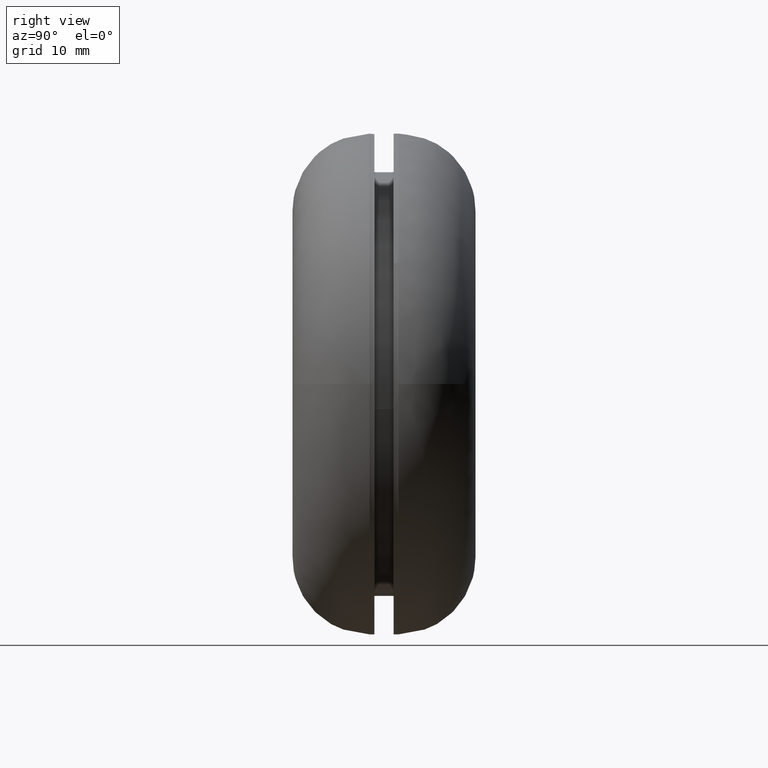
[diagram: clean part render]
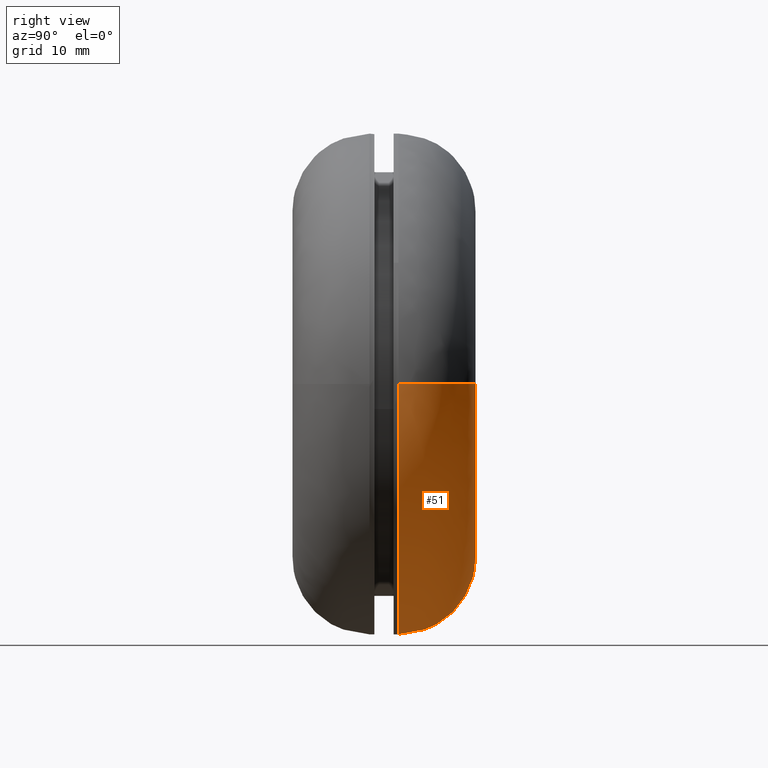
[diagram: same view with one face highlighted and labeled with its STEP entity id]
A machine part, right view. The second image highlights one B-rep face of the part: STEP entity #51.
In plain terms, the highlighted face is a freeform B-spline surface patch.
Its self-contained STEP definition (entity closure, byte-faithful):
#51=ADVANCED_FACE('',(#171),#170,.T.);
#170=( BOUNDED_SURFACE() B_SPLINE_SURFACE( 2,2,((#342,#343,#344,#345,#346),(#347,#348,#349,#350,#351),(#352,#353,#354,#355,#356),(#357,#358,#359,#360,#361),(#362,#363,#364,#365,#366)), .UNSPECIFIED.,.F.,.F.,.F.) B_SPLINE_SURFACE_WITH_KNOTS((3,2,3),(3,2,3),(-1.57079637440E+000,-1.04719723487E+000,9.48983808868E-007),(3.14159265359E+000,4.71238898038E+000,6.28318530718E+000), .UNSPECIFIED. ) GEOMETRIC_REPRESENTATION_ITEM() RATIONAL_B_SPLINE_SURFACE(((9.33012622810E-001,6.59739552522E-001,9.33012622810E-001,6.59739552522E-001,9.33012622810E-001),(9.33012616720E-001,6.59739548215E-001,9.33012616720E-001,6.59739548215E-001,9.33012616720E-001),(1.00000000000E+000,7.07106781187E-001,1.00000000000E+000,7.07106781187E-001,1.00000000000E+000),(8.66025245620E-001,6.12372323857E-001,8.66025245620E-001,6.12372323857E-001,8.66025245620E-001),(1.00000000000E+000,7.07106781187E-001,1.00000000000E+000,7.07106781187E-001,1.00000000000E+000))) REPRESENTATION_ITEM('') SURFACE() );
#171=FACE_OUTER_BOUND('',#367,.T.);
#342=CARTESIAN_POINT('',(1.79999996102E+001,1.90000000000E+001,-4.68013923126E-014));
#343=CARTESIAN_POINT('',(1.79999996102E+001,1.90000000000E+001,-1.79999996102E+001));
#344=CARTESIAN_POINT('',(-4.86520907459E-012,1.90000000000E+001,-1.79999996102E+001));
#345=CARTESIAN_POINT('',(-1.79999996102E+001,1.90000000000E+001,-1.79999996102E+001));
#346=CARTESIAN_POINT('',(-1.79999996102E+001,1.90000000000E+001,-4.23928095343E-014));
#347=CARTESIAN_POINT('',(2.01435947147E+001,1.90000001044E+001,-4.70638986500E-014));
#348=CARTESIAN_POINT('',(2.01435947147E+001,1.90000001044E+001,-2.01435947147E+001));
#349=CARTESIAN_POINT('',(-4.86547155523E-012,1.90000001044E+001,-2.01435947147E+001));
#350=CARTESIAN_POINT('',(-2.01435947147E+001,1.90000001044E+001,-2.01435947147E+001));
#351=CARTESIAN_POINT('',(-2.01435947147E+001,1.90000001044E+001,-4.21303038347E-014));
#352=CARTESIAN_POINT('',(2.20000021916E+001,1.79282019650E+001,-4.40181059154E-014));
#353=CARTESIAN_POINT('',(2.20000021916E+001,1.79282019650E+001,-2.20000021916E+001));
#354=CARTESIAN_POINT('',(-5.12615255699E-012,1.79282019650E+001,-2.20000021916E+001));
#355=CARTESIAN_POINT('',(-2.20000021916E+001,1.79282019650E+001,-2.20000021916E+001));
#356=CARTESIAN_POINT('',(-2.20000021916E+001,1.79282019650E+001,-3.86298374219E-014));
#357=CARTESIAN_POINT('',(2.60000043832E+001,1.56187979358E+001,-3.74553346676E-014));
#358=CARTESIAN_POINT('',(2.60000043832E+001,1.56187979358E+001,-2.60000043832E+001));
#359=CARTESIAN_POINT('',(-5.68784205208E-012,1.56187979358E+001,-2.60000043832E+001));
#360=CARTESIAN_POINT('',(-2.60000043832E+001,1.56187979358E+001,-2.60000043832E+001));
#361=CARTESIAN_POINT('',(-2.60000043832E+001,1.56187979358E+001,-3.10873805542E-014));
#362=CARTESIAN_POINT('',(2.60000000000E+001,1.09999924081E+001,-2.33501137436E-014));
#363=CARTESIAN_POINT('',(2.60000000000E+001,1.09999924081E+001,-2.60000000000E+001));
#364=CARTESIAN_POINT('',(-6.81024074113E-012,1.09999924081E+001,-2.60000000000E+001));
#365=CARTESIAN_POINT('',(-2.60000000000E+001,1.09999924081E+001,-2.60000000000E+001));
#366=CARTESIAN_POINT('',(-2.60000000000E+001,1.09999924081E+001,-1.69821607037E-014));
#367=EDGE_LOOP('',(#459,#460,#461,#462,#463,#464,#465,#466));
#459=ORIENTED_EDGE('',*,*,#536,.F.);
#460=ORIENTED_EDGE('',*,*,#537,.F.);
#461=ORIENTED_EDGE('',*,*,#538,.F.);
#462=ORIENTED_EDGE('',*,*,#539,.F.);
#463=ORIENTED_EDGE('',*,*,#530,.F.);
#464=ORIENTED_EDGE('',*,*,#504,.T.);
#465=ORIENTED_EDGE('',*,*,#506,.T.);
#466=ORIENTED_EDGE('',*,*,#535,.T.);
#504=EDGE_CURVE('',#628,#629,#630,.T.);
#506=EDGE_CURVE('',#629,#636,#643,.T.);
#530=EDGE_CURVE('',#628,#804,#805,.T.);
#535=EDGE_CURVE('',#636,#832,#839,.T.);
#536=EDGE_CURVE('',#845,#832,#846,.T.);
#537=EDGE_CURVE('',#852,#845,#853,.T.);
#538=EDGE_CURVE('',#859,#852,#860,.T.);
#539=EDGE_CURVE('',#804,#859,#866,.T.);
#628=VERTEX_POINT('',#956);
#629=VERTEX_POINT('',#957);
#630=CIRCLE('',#961,1.80000000003E+001);
#636=VERTEX_POINT('',#962);
#643=CIRCLE('',#970,1.80000000003E+001);
#804=VERTEX_POINT('',#1074);
#805=(BOUNDED_CURVE() B_SPLINE_CURVE(2,(#1075,#1076,#1077,#1078,#1079),.UNSPECIFIED.,.F.,.F.) B_SPLINE_CURVE_WITH_KNOTS((3,2,3),(-1.57079632679E+000,-1.04719723487E+000,9.45081691634E-007),.UNSPECIFIED.) CURVE() GEOMETRIC_REPRESENTATION_ITEM() RATIONAL_B_SPLINE_CURVE((9.33012622810E-001,9.33012622810E-001,1.00000000000E+000,8.66025245620E-001,1.00000000000E+000)) REPRESENTATION_ITEM('') );
#832=VERTEX_POINT('',#1095);
#839=(BOUNDED_CURVE() B_SPLINE_CURVE(2,(#1100,#1101,#1102,#1103,#1104),.UNSPECIFIED.,.F.,.F.) B_SPLINE_CURVE_WITH_KNOTS((3,2,3),(-1.57079637440E+000,-1.04719723487E+000,9.48983808868E-007),.UNSPECIFIED.) CURVE() GEOMETRIC_REPRESENTATION_ITEM() RATIONAL_B_SPLINE_CURVE((9.33012622810E-001,9.33012616720E-001,1.00000000000E+000,8.66025245620E-001,1.00000000000E+000)) REPRESENTATION_ITEM('') );
#845=VERTEX_POINT('',#1105);
#846=CIRCLE('',#1109,2.60000000000E+001);
#852=VERTEX_POINT('',#1110);
#853=CIRCLE('',#1114,2.60000000000E+001);
#859=VERTEX_POINT('',#1115);
#860=CIRCLE('',#1119,2.60000000000E+001);
#866=CIRCLE('',#1123,2.60000000000E+001);
#956=CARTESIAN_POINT('',(-1.80000000004E+001,1.90000000000E+001,-2.72888105501E-007));
#957=CARTESIAN_POINT('',(3.55271367880E-015,1.90000000000E+001,-1.80000000005E+001));
#958=CARTESIAN_POINT('',(-1.11120002089E-010,1.90000000000E+001,-2.53685072948E-010));
#959=DIRECTION('',(-8.65798458695E-016,-1.00000000000E+000,-6.72483855325E-015));
#960=DIRECTION('',(6.17388085100E-012,6.72483855324E-015,-1.00000000000E+000));
#961=AXIS2_PLACEMENT_3D('',#958,#959,#960);
#962=CARTESIAN_POINT('',(1.80000000001E+001,1.90000000000E+001,9.06985383280E-008));
#967=CARTESIAN_POINT('',(-1.11120002089E-010,1.90000000000E+001,-2.53685072948E-010));
#968=DIRECTION('',(-8.65798458695E-016,-1.00000000000E+000,-6.72483855325E-015));
#969=DIRECTION('',(6.17388085100E-012,6.72483855324E-015,-1.00000000000E+000));
#970=AXIS2_PLACEMENT_3D('',#967,#968,#969);
#1074=CARTESIAN_POINT('',(-2.60000000000E+001,1.09999924556E+001,-1.77947989803E-014));
#1075=CARTESIAN_POINT('',(-1.80000000000E+001,1.90000000000E+001,-4.23928094866E-014));
#1076=CARTESIAN_POINT('',(-2.01435948956E+001,1.90000000000E+001,-4.21303034936E-014));
#1077=CARTESIAN_POINT('',(-2.20000021916E+001,1.79282019650E+001,-3.86298374219E-014));
#1078=CARTESIAN_POINT('',(-2.60000043832E+001,1.56187979358E+001,-3.10873805542E-014));
#1079=CARTESIAN_POINT('',(-2.60000000000E+001,1.09999924081E+001,-1.69821607037E-014));
#1095=CARTESIAN_POINT('',(2.60000000000E+001,1.09999927877E+001,4.35062045663E-006));
#1100=CARTESIAN_POINT('',(1.79999996102E+001,1.90000000000E+001,-4.68013923126E-014));
#1101=CARTESIAN_POINT('',(2.01435947147E+001,1.90000001044E+001,-4.70638986500E-014));
#1102=CARTESIAN_POINT('',(2.20000021916E+001,1.79282019650E+001,-4.40181059154E-014));
#1103=CARTESIAN_POINT('',(2.60000043832E+001,1.56187979358E+001,-3.74553346676E-014));
#1104=CARTESIAN_POINT('',(2.60000000000E+001,1.09999924081E+001,-2.33501137436E-014));
#1105=CARTESIAN_POINT('',(2.59367077300E+001,1.09999925359E+001,-1.81306153443E+000));
#1106=CARTESIAN_POINT('',(-4.58300064565E-013,1.09999962679E+001,4.43733938482E-012));
#1107=DIRECTION('',(-1.33857194641E-007,-1.00000000000E+000,1.43540724722E-007));
#1108=DIRECTION('',(-8.74946516989E-001,4.76126581580E-008,-4.84219570451E-001));
#1109=AXIS2_PLACEMENT_3D('',#1106,#1107,#1108);
#1110=CARTESIAN_POINT('',(0.00000000000E+000,1.10000000000E+001,-2.60000000000E+001));
#1111=CARTESIAN_POINT('',(-2.05524486319E-012,1.09999962679E+001,-5.47295542219E-012));
#1112=DIRECTION('',(-1.53925160524E-007,-1.00000000000E+000,-1.43540900260E-007));
#1113=DIRECTION('',(-7.90478793533E-014,-1.43540900260E-007,1.00000000000E+000));
#1114=AXIS2_PLACEMENT_3D('',#1111,#1112,#1113);
#1115=CARTESIAN_POINT('',(-2.27486041857E+001,1.09999947624E+001,-1.25897183289E+001));
#1116=CARTESIAN_POINT('',(2.48157050464E-012,1.09999962041E+001,-1.04432018588E-011));
#1117=DIRECTION('',(1.44173882931E-007,-1.00000000000E+000,-1.45997022441E-007));
#1118=DIRECTION('',(9.99921052629E-001,1.45997007304E-007,-1.25653694236E-002));
#1119=AXIS2_PLACEMENT_3D('',#1116,#1117,#1118);
#1120=CARTESIAN_POINT('',(2.48157050464E-012,1.09999962041E+001,-1.04432018588E-011));
#1121=DIRECTION('',(1.44173882931E-007,-1.00000000000E+000,-1.45997022441E-007));
#1122=DIRECTION('',(9.99921052629E-001,1.45997007304E-007,-1.25653694236E-002));
#1123=AXIS2_PLACEMENT_3D('',#1120,#1121,#1122);